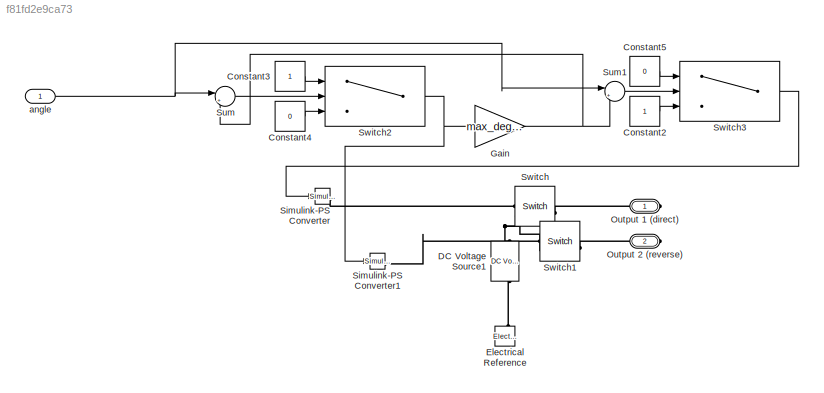
MODEL slx_f81fd2e9ca73
KIND model
CONFIG AbsTol = auto
CONFIG EnableMultiTasking = off
CONFIG FixedStep = auto
CONFIG MaxStep = auto
CONFIG MinStep = auto
CONFIG RelTol = 1e-3
CONFIG SampleTimeConstraint = Unconstrained
CONFIG SolverName = VariableStepAuto
CONFIG StartTime = 0.0
CONFIG StopTime = 10.0
BLOCK [Constant] Constant2
BLOCK [Constant] Constant3
BLOCK [Constant] Constant4
  Value = 0
BLOCK [Constant] Constant5
  Value = 0
BLOCK [Reference] DC Voltage Source1  REF=ee_lib/Additional
Components/SPICE Sources/DC Voltage Source
  NameLocation = right
  SourceBlock = ee_lib/Additional\nComponents/SPICE Sources/DC Voltage Source
  SourceType = DC Voltage Source
BLOCK [Reference] Electrical Reference  REF=fl_lib/Electrical/Electrical Elements/Electrical Reference
  LibrarySourceBlock = ee_lib/Connectors &\nReferences/Electrical Reference
  NameLocation = right
  SourceBlock = fl_lib/Electrical/Electrical Elements/Electrical Reference
  SourceType = Electrical Reference
BLOCK [Gain] Gain
  Gain = max_deg-min_deg
BLOCK [PMIOPort] Output 1 (direct)
  Side = Right
BLOCK [PMIOPort] Output 2 (reverse)
  Port = 2
  Side = Right
BLOCK [Reference] Simulink-PS Converter  REF=nesl_utility/Simulink-PS
Converter
  SourceBlock = nesl_utility/Simulink-PS\nConverter
  SourceType = Simulink-PS\nConverter
BLOCK [Reference] Simulink-PS Converter1  REF=nesl_utility/Simulink-PS
Converter
  SourceBlock = nesl_utility/Simulink-PS\nConverter
  SourceType = Simulink-PS\nConverter
BLOCK [Sum] Sum
  Inputs = |++
BLOCK [Sum] Sum1
  Inputs = |++
BLOCK [Reference] Switch  REF=fl_lib/Electrical/Electrical Elements/Switch
  SourceBlock = fl_lib/Electrical/Electrical Elements/Switch
  SourceType = Switch
BLOCK [Reference] Switch1  REF=fl_lib/Electrical/Electrical Elements/Switch
  SourceBlock = fl_lib/Electrical/Electrical Elements/Switch
  SourceType = Switch
BLOCK [Switch] Switch2
  InputSameDT = off
  OutMax = 360
  OutMin = 0
  SaturateOnIntegerOverflow = off
  Threshold = max_deg
BLOCK [Switch] Switch3
  InputSameDT = off
  OutMax = 360
  OutMin = 0
  SaturateOnIntegerOverflow = off
  Threshold = max_deg
BLOCK [Inport] angle
LINE Constant2:1 -> Switch3:3
LINE Constant3:1 -> Switch2:1
LINE Constant4:1 -> Switch2:3
LINE Constant5:1 -> Switch3:1
NET Gain:1 -> Sum1:2, Sum:2
LINE Sum1:1 -> Switch3:2
LINE Sum:1 -> Switch2:2
NET Switch2:1 -> Gain:1, Simulink-PS Converter1:1
LINE Switch3:1 -> Simulink-PS Converter:1
NET angle:1 -> Sum1:1, Sum:1
PNET net1: DC Voltage Source1:LConn1 -- Switch1:RConn2 -- Switch:RConn2
PLINE DC Voltage Source1:RConn1 -- Electrical Reference:LConn1
PLINE Output 1 (direct):RConn1 -- Switch:LConn1
PLINE Output 2 (reverse):RConn1 -- Switch1:LConn1
PLINE Simulink-PS Converter1:RConn1 -- Switch1:RConn1
PLINE Simulink-PS Converter:RConn1 -- Switch:RConn1
note: NET lines group one-source signal fan-out (src -> all destinations, sorted); 1:1 wires keep LINE; PNET lines group multi-terminal physical nets as a canonical sorted terminal list (undirected conserving connections); 2-terminal nets keep the pairwise PLINE form
